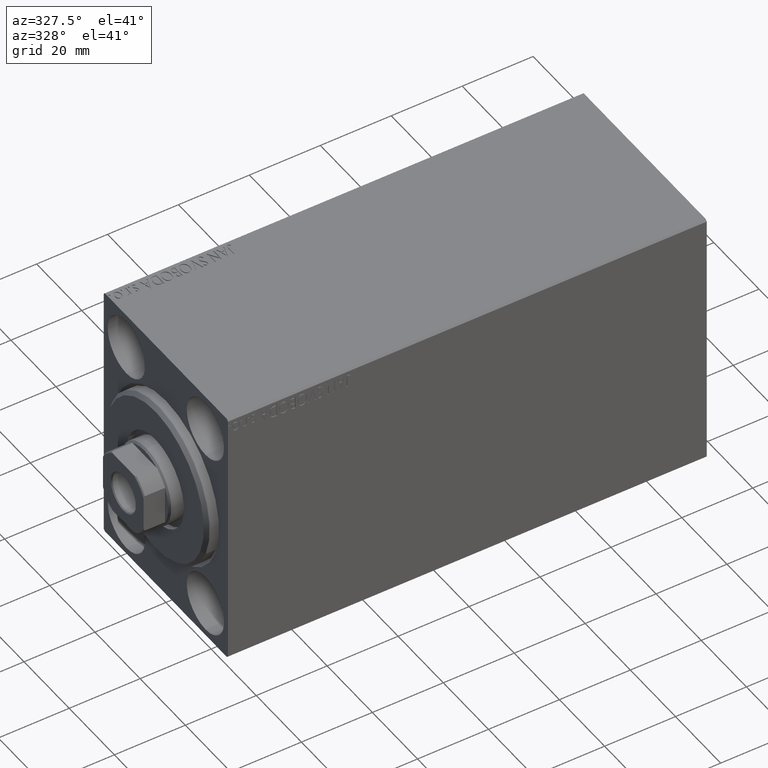
[diagram: clean part render]
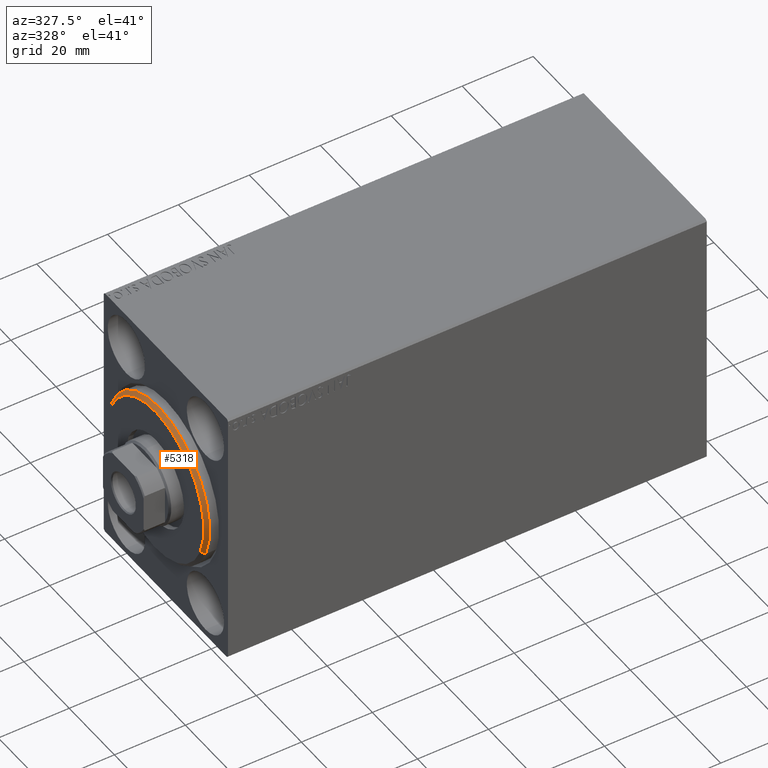
[diagram: same view with one face highlighted and labeled with its STEP entity id]
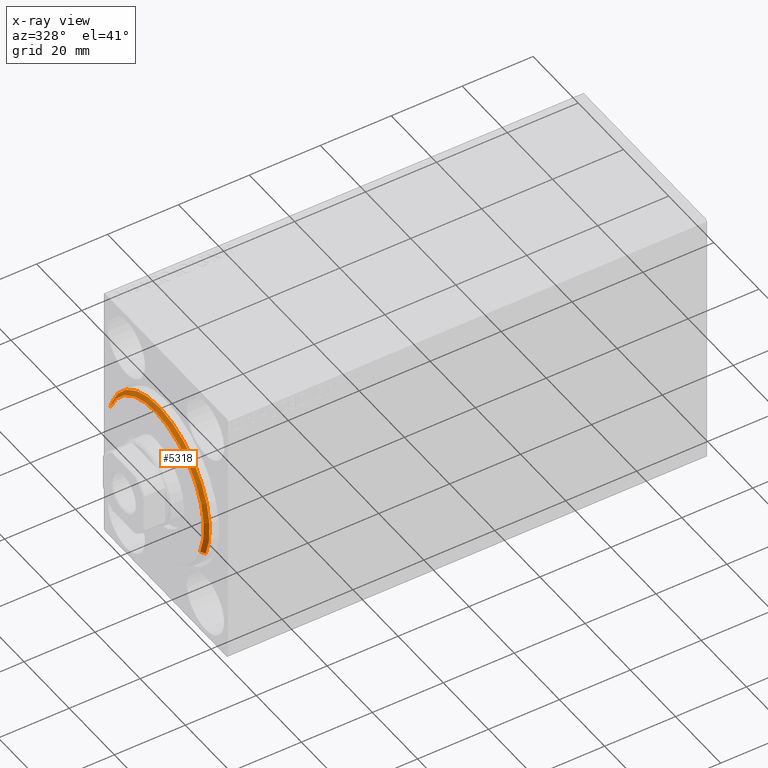
[diagram: x-ray of the same camera — body ghosted, the highlighted face saturated]
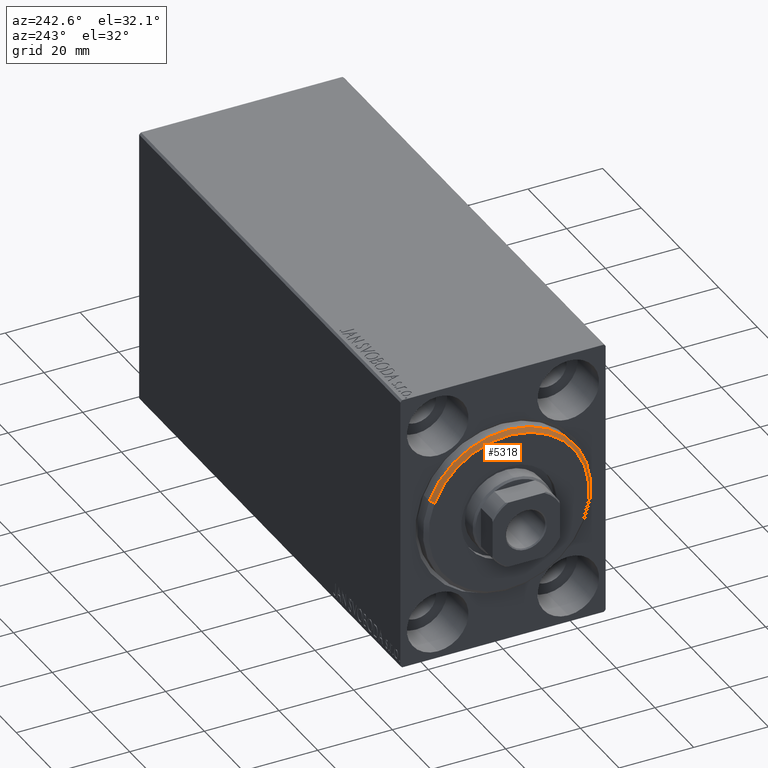
[diagram: same view with one face highlighted and labeled with its STEP entity id]
A machine part, auxiliary view. The second image highlights one B-rep face of the part: STEP entity #5318.
The next image is the same camera in x-ray: the body ghosted, the highlighted face saturated — about 0% of this face is hidden behind the body in this view.
A second angle (auxiliary view) of the same face is appended — the face is thin or edge-on in the first view.
In plain terms, the highlighted conical surface has half-angle 45 deg.
Its self-contained STEP definition (entity closure, byte-faithful):
#254 = DIRECTION ( 'NONE',  ( 0.000000000000000000, 0.000000000000000000, -1.000000000000000000 ) ) ;
#707 = CARTESIAN_POINT ( 'NONE',  ( 1.999999999999999112, 0.000000000000000000, 0.000000000000000000 ) ) ;
#2482 = EDGE_CURVE ( 'NONE', #36368, #19610, #15770, .T. ) ;
#2838 = CARTESIAN_POINT ( 'NONE',  ( 3.000000000000000000, 0.000000000000000000, 0.000000000000000000 ) ) ;
#5318 = ADVANCED_FACE ( 'NONE', ( #19809 ), #29199, .T. ) ;
#6365 = EDGE_CURVE ( 'NONE', #40752, #36368, #26617, .T. ) ;
#6575 = CARTESIAN_POINT ( 'NONE',  ( 3.000000000000000000, 2.632990618166810024E-15, -21.50000000000000355 ) ) ;
#9886 = CARTESIAN_POINT ( 'NONE',  ( 3.000000000000000000, 2.694222958124177598E-15, -21.50000000000000355 ) ) ;
#10032 = ORIENTED_EDGE ( 'NONE', *, *, #6365, .F. ) ;
#12010 = CARTESIAN_POINT ( 'NONE',  ( 3.000000000000000000, 0.000000000000000000, 21.50000000000000355 ) ) ;
#12968 = DIRECTION ( 'NONE',  ( -1.000000000000000000, 0.000000000000000000, 0.000000000000000000 ) ) ;
#13898 = CIRCLE ( 'NONE', #38502, 21.50000000000000355 ) ;
#15519 = DIRECTION ( 'NONE',  ( -0.7071067811865487940, 0.000000000000000000, 0.7071067811865463515 ) ) ;
#15770 = CIRCLE ( 'NONE', #32652, 22.50000000000000355 ) ;
#16742 = DIRECTION ( 'NONE',  ( 1.000000000000000000, -0.000000000000000000, 0.000000000000000000 ) ) ;
#17998 = VECTOR ( 'NONE', #20020, 1000.000000000000000 ) ;
#19610 = VERTEX_POINT ( 'NONE', #36921 ) ;
#19809 = FACE_OUTER_BOUND ( 'NONE', #33450, .T. ) ;
#20020 = DIRECTION ( 'NONE',  ( -0.7071067811865487940, 8.659560562354919300E-17, -0.7071067811865463515 ) ) ;
#20058 = CARTESIAN_POINT ( 'NONE',  ( 3.000000000000000000, 0.000000000000000000, 0.000000000000000000 ) ) ;
#22412 = ORIENTED_EDGE ( 'NONE', *, *, #2482, .F. ) ;
#23114 = DIRECTION ( 'NONE',  ( 0.000000000000000000, 0.000000000000000000, 1.000000000000000000 ) ) ;
#23650 = ORIENTED_EDGE ( 'NONE', *, *, #33895, .T. ) ;
#26617 = LINE ( 'NONE', #6575, #17998 ) ;
#26634 = CARTESIAN_POINT ( 'NONE',  ( 1.999999999999999112, 2.755455298081545172E-15, -22.50000000000000355 ) ) ;
#29199 = CONICAL_SURFACE ( 'NONE', #40468, 21.50000000000000355, 0.7853981633974466137 ) ;
#29258 = CARTESIAN_POINT ( 'NONE',  ( 3.000000000000000000, 0.000000000000000000, 21.50000000000000355 ) ) ;
#32652 = AXIS2_PLACEMENT_3D ( 'NONE', #707, #40577, #254 ) ;
#33450 = EDGE_LOOP ( 'NONE', ( #10032, #37939, #23650, #22412 ) ) ;
#33895 = EDGE_CURVE ( 'NONE', #41387, #19610, #39305, .T. ) ;
#36368 = VERTEX_POINT ( 'NONE', #26634 ) ;
#36921 = CARTESIAN_POINT ( 'NONE',  ( 1.999999999999999112, 0.000000000000000000, 22.50000000000000355 ) ) ;
#37939 = ORIENTED_EDGE ( 'NONE', *, *, #38421, .F. ) ;
#38421 = EDGE_CURVE ( 'NONE', #41387, #40752, #13898, .T. ) ;
#38502 = AXIS2_PLACEMENT_3D ( 'NONE', #20058, #16742, #39862 ) ;
#39305 = LINE ( 'NONE', #12010, #43454 ) ;
#39862 = DIRECTION ( 'NONE',  ( 0.000000000000000000, 0.000000000000000000, -1.000000000000000000 ) ) ;
#40468 = AXIS2_PLACEMENT_3D ( 'NONE', #2838, #12968, #23114 ) ;
#40577 = DIRECTION ( 'NONE',  ( -1.000000000000000000, 0.000000000000000000, 0.000000000000000000 ) ) ;
#40752 = VERTEX_POINT ( 'NONE', #9886 ) ;
#41387 = VERTEX_POINT ( 'NONE', #29258 ) ;
#43454 = VECTOR ( 'NONE', #15519, 1000.000000000000000 ) ;